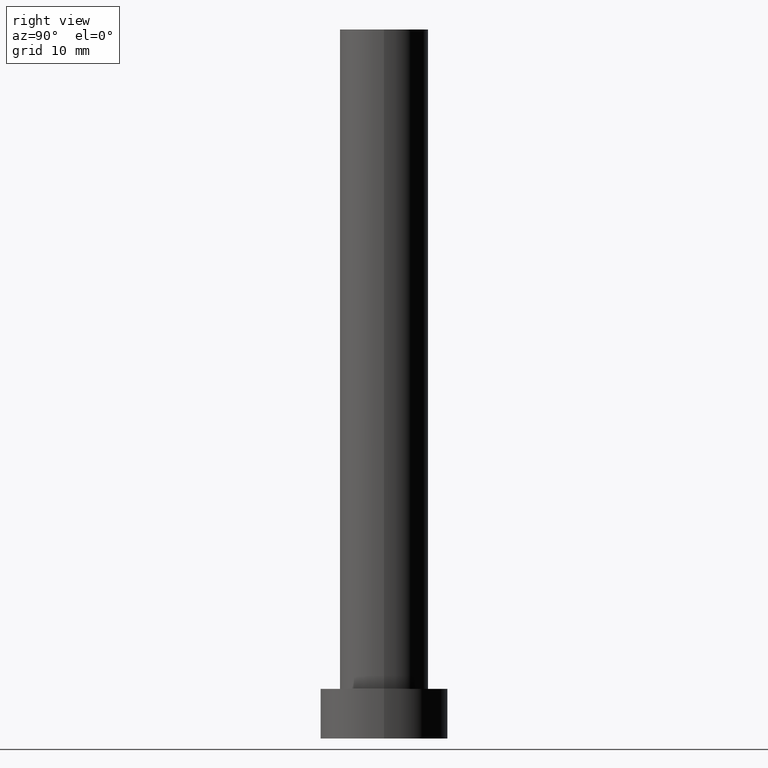
[diagram: clean part render]
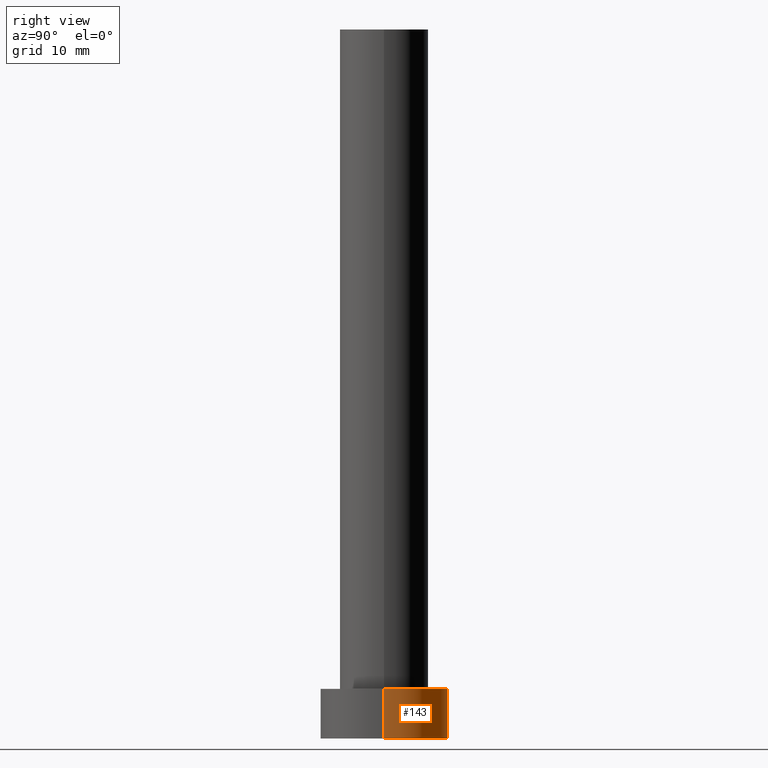
[diagram: same view with one face highlighted and labeled with its STEP entity id]
A machine part, right view. The second image highlights one B-rep face of the part: STEP entity #143.
In plain terms, the highlighted cylindrical surface (partial cylindrical patch) has radius 9 mm, axis along (-0, -0, -1).
Its self-contained STEP definition (entity closure, byte-faithful):
#5 = AXIS2_PLACEMENT_3D ( 'NONE', #227, #12, #166 ) ;
#12 = DIRECTION ( 'NONE',  ( 0.000000000000000000, 0.000000000000000000, 1.000000000000000000 ) ) ;
#14 = AXIS2_PLACEMENT_3D ( 'NONE', #144, #107, #52 ) ;
#19 = EDGE_CURVE ( 'NONE', #48, #40, #68, .T. ) ;
#27 = ORIENTED_EDGE ( 'NONE', *, *, #51, .F. ) ;
#32 = CARTESIAN_POINT ( 'NONE',  ( -9.000000000000000000, 0.000000000000000000, 7.000000000000000000 ) ) ;
#33 = CARTESIAN_POINT ( 'NONE',  ( 9.000000000000000000, 1.102182119232617714E-15, 7.000000000000000000 ) ) ;
#40 = VERTEX_POINT ( 'NONE', #212 ) ;
#43 = VERTEX_POINT ( 'NONE', #33 ) ;
#48 = VERTEX_POINT ( 'NONE', #131 ) ;
#51 = EDGE_CURVE ( 'NONE', #43, #48, #164, .T. ) ;
#52 = DIRECTION ( 'NONE',  ( 1.000000000000000000, 0.000000000000000000, 0.000000000000000000 ) ) ;
#64 = ORIENTED_EDGE ( 'NONE', *, *, #96, .T. ) ;
#67 = EDGE_CURVE ( 'NONE', #43, #243, #130, .T. ) ;
#68 = LINE ( 'NONE', #32, #122 ) ;
#70 = DIRECTION ( 'NONE',  ( -0.000000000000000000, -0.000000000000000000, -1.000000000000000000 ) ) ;
#71 = CARTESIAN_POINT ( 'NONE',  ( 0.000000000000000000, 0.000000000000000000, 7.000000000000000000 ) ) ;
#89 = CYLINDRICAL_SURFACE ( 'NONE', #113, 9.000000000000000000 ) ;
#91 = FACE_OUTER_BOUND ( 'NONE', #181, .T. ) ;
#96 = EDGE_CURVE ( 'NONE', #243, #40, #196, .T. ) ;
#106 = DIRECTION ( 'NONE',  ( -0.000000000000000000, -0.000000000000000000, -1.000000000000000000 ) ) ;
#107 = DIRECTION ( 'NONE',  ( 0.000000000000000000, 0.000000000000000000, 1.000000000000000000 ) ) ;
#113 = AXIS2_PLACEMENT_3D ( 'NONE', #71, #232, #147 ) ;
#120 = ORIENTED_EDGE ( 'NONE', *, *, #67, .T. ) ;
#122 = VECTOR ( 'NONE', #70, 1000.000000000000000 ) ;
#130 = LINE ( 'NONE', #247, #174 ) ;
#131 = CARTESIAN_POINT ( 'NONE',  ( -9.000000000000000000, 0.000000000000000000, 7.000000000000000000 ) ) ;
#143 = ADVANCED_FACE ( 'NONE', ( #91 ), #89, .T. ) ;
#144 = CARTESIAN_POINT ( 'NONE',  ( 0.000000000000000000, 0.000000000000000000, 7.000000000000000000 ) ) ;
#147 = DIRECTION ( 'NONE',  ( -1.000000000000000000, 0.000000000000000000, 0.000000000000000000 ) ) ;
#164 = CIRCLE ( 'NONE', #14, 9.000000000000000000 ) ;
#166 = DIRECTION ( 'NONE',  ( 1.000000000000000000, 0.000000000000000000, 0.000000000000000000 ) ) ;
#174 = VECTOR ( 'NONE', #106, 1000.000000000000000 ) ;
#181 = EDGE_LOOP ( 'NONE', ( #27, #120, #64, #200 ) ) ;
#192 = CARTESIAN_POINT ( 'NONE',  ( 9.000000000000000000, 1.102182119232617714E-15, 0.000000000000000000 ) ) ;
#196 = CIRCLE ( 'NONE', #5, 9.000000000000000000 ) ;
#200 = ORIENTED_EDGE ( 'NONE', *, *, #19, .F. ) ;
#212 = CARTESIAN_POINT ( 'NONE',  ( -9.000000000000000000, 0.000000000000000000, 0.000000000000000000 ) ) ;
#227 = CARTESIAN_POINT ( 'NONE',  ( 0.000000000000000000, 0.000000000000000000, 0.000000000000000000 ) ) ;
#232 = DIRECTION ( 'NONE',  ( -0.000000000000000000, -0.000000000000000000, -1.000000000000000000 ) ) ;
#243 = VERTEX_POINT ( 'NONE', #192 ) ;
#247 = CARTESIAN_POINT ( 'NONE',  ( 9.000000000000000000, 1.102182119232617714E-15, 7.000000000000000000 ) ) ;